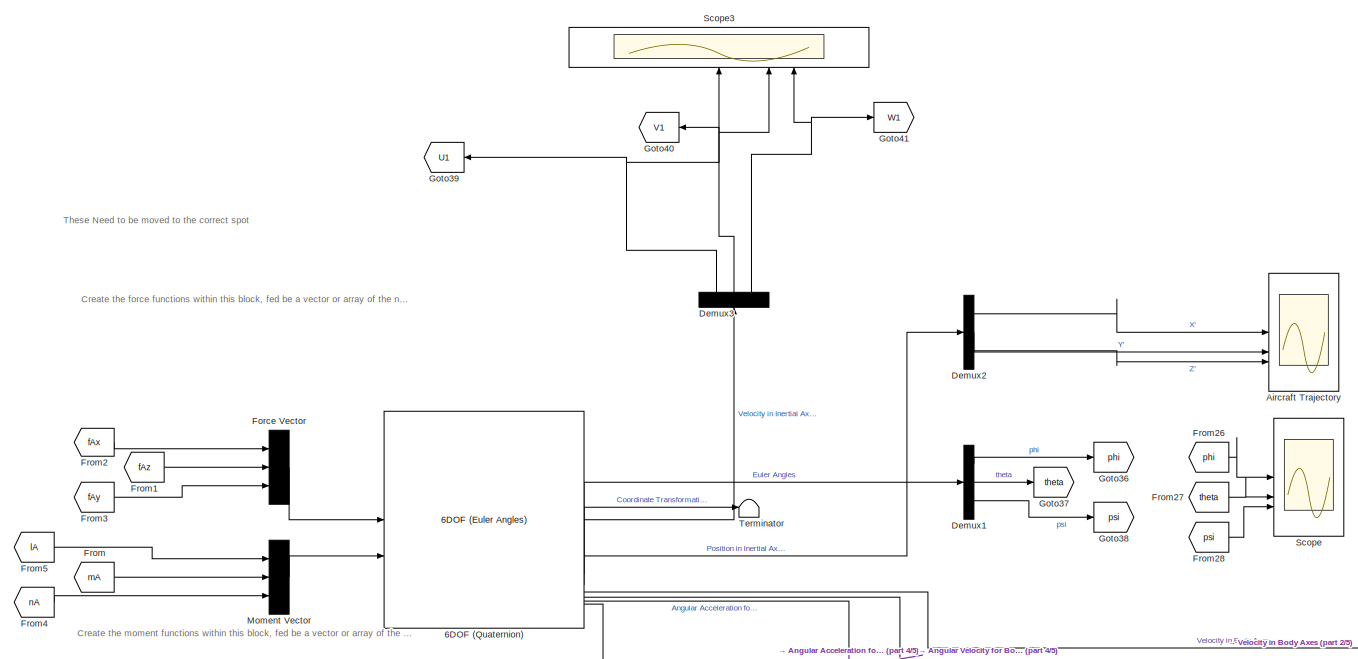
[diagram: root canvas - part 1/5, top center region]
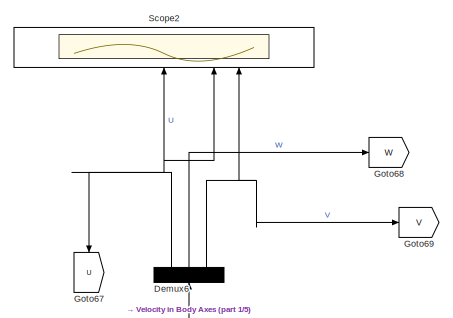
[diagram: root canvas - part 2/5, top right region]
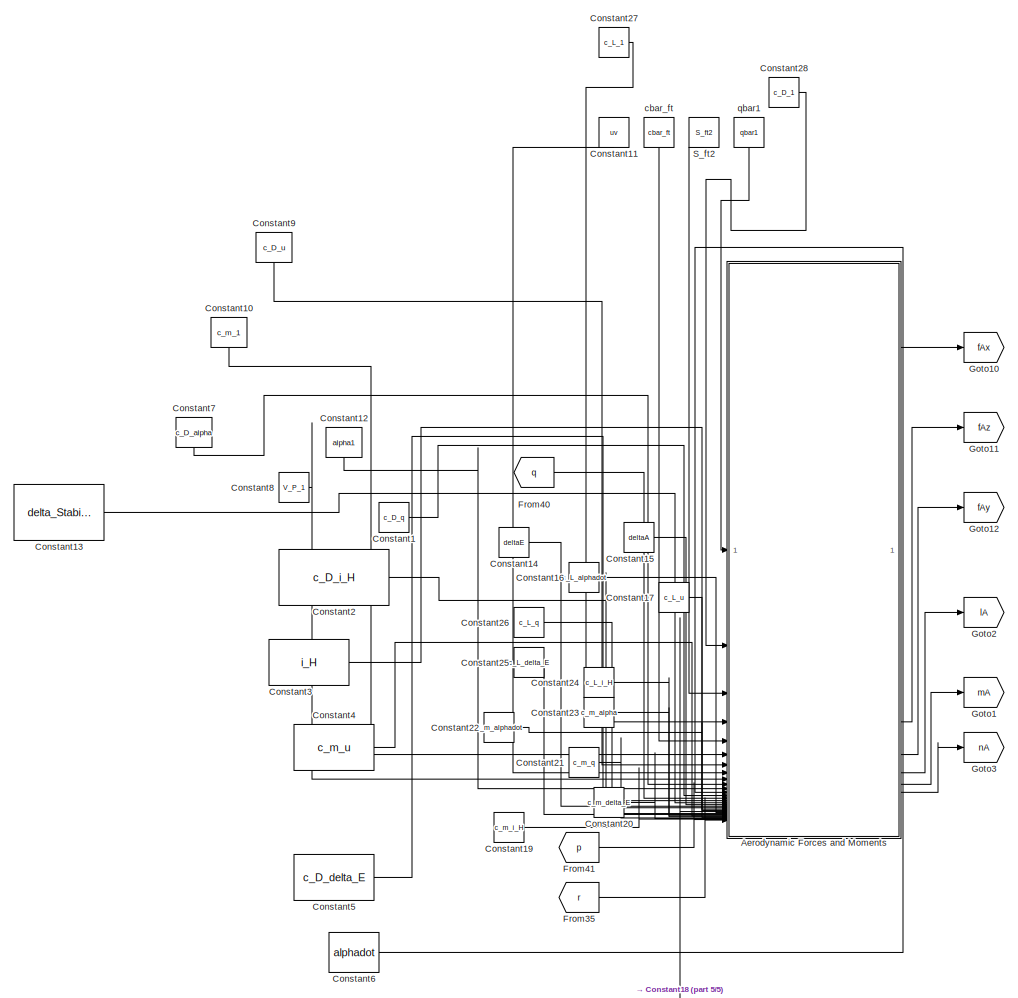
[diagram: root canvas - part 3/5, middle left region]
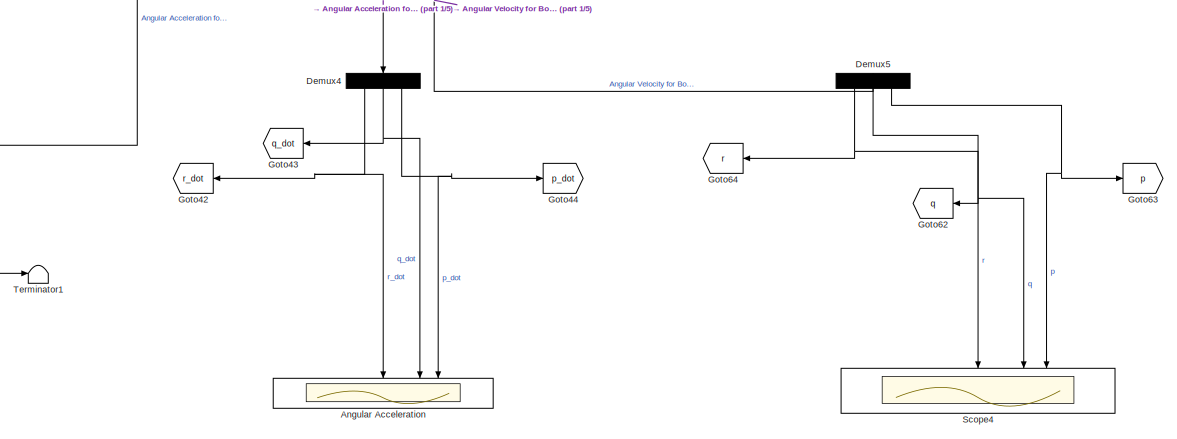
[diagram: root canvas - part 4/5, middle right region]
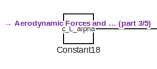
[diagram: root canvas - part 5/5, bottom left region]
MODEL slx_30656341fce1
KIND model
CONFIG AbsTol = auto
CONFIG EnableMultiTasking = off
CONFIG FixedStep = auto
CONFIG MaxStep = auto
CONFIG MinStep = auto
CONFIG RelTol = 1e-3
CONFIG SampleTimeConstraint = Unconstrained
CONFIG SolverName = VariableStepAuto
CONFIG StartTime = 0.0
CONFIG StopTime = 10.0
WORKSPACE source: mxarray member
WORKSPACE pqr = [0 0 0]
BLOCK [Reference] 6DOF (Quaternion)  REF=shared6dof/6DOF (Euler Angles)
  LibrarySourceBlock = aerolib6dof2/6DOF (Quaternion)
  SourceBlock = shared6dof/6DOF (Euler Angles)
  SourceType = 6DOF EoM (Body Axis)
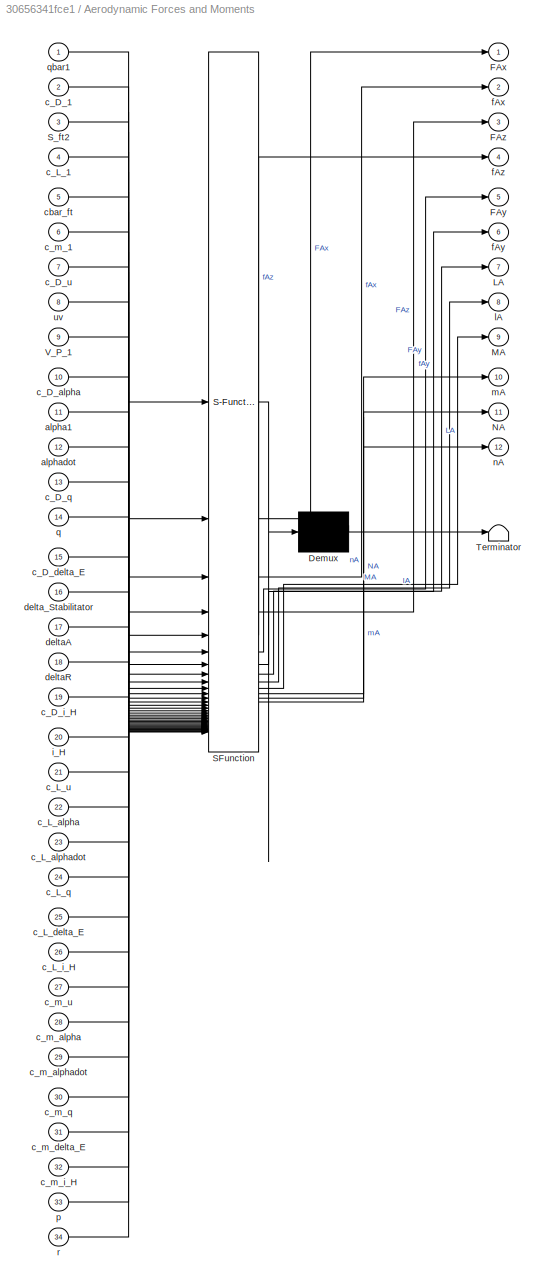
BLOCK [SubSystem] Aerodynamic Forces and Moments
  ErrorFcn = Stateflow.Translate.translate
  PermitHierarchicalResolution = ExplicitOnly
  SFBlockType = MATLAB Function
  TreatAsAtomicUnit = on
BLOCK [Demux] Aerodynamic Forces and Moments/ Demux 
  Outputs = 1
BLOCK [S-Function] Aerodynamic Forces and Moments/ SFunction 
  EnableBusSupport = on
  FunctionName = sf_sfun
  PortCounts = [34 13]
  SFcnIsStateOwnerBlock = off
  SFunctionDeploymentMode = off
  Tag = Stateflow S-Function 13
BLOCK [Terminator] Aerodynamic Forces and Moments/ Terminator 
BLOCK [Outport] Aerodynamic Forces and Moments/FAx
BLOCK [Outport] Aerodynamic Forces and Moments/FAy
  Port = 5
BLOCK [Outport] Aerodynamic Forces and Moments/FAz
  Port = 3
BLOCK [Outport] Aerodynamic Forces and Moments/LA
  Port = 7
BLOCK [Outport] Aerodynamic Forces and Moments/MA
  Port = 9
BLOCK [Outport] Aerodynamic Forces and Moments/NA
  Port = 11
BLOCK [Inport] Aerodynamic Forces and Moments/S_ft2
  Port = 3
BLOCK [Inport] Aerodynamic Forces and Moments/V_P_1
  Port = 9
BLOCK [Inport] Aerodynamic Forces and Moments/alpha1
  Port = 11
BLOCK [Inport] Aerodynamic Forces and Moments/alphadot
  Port = 12
BLOCK [Inport] Aerodynamic Forces and Moments/c_D_1
  Port = 2
BLOCK [Inport] Aerodynamic Forces and Moments/c_D_alpha
  Port = 10
BLOCK [Inport] Aerodynamic Forces and Moments/c_D_delta_E
  Port = 15
BLOCK [Inport] Aerodynamic Forces and Moments/c_D_i_H
  Port = 19
BLOCK [Inport] Aerodynamic Forces and Moments/c_D_q
  Port = 13
BLOCK [Inport] Aerodynamic Forces and Moments/c_D_u
  Port = 7
BLOCK [Inport] Aerodynamic Forces and Moments/c_L_1
  Port = 4
BLOCK [Inport] Aerodynamic Forces and Moments/c_L_alpha
  Port = 22
BLOCK [Inport] Aerodynamic Forces and Moments/c_L_alphadot
  Port = 23
BLOCK [Inport] Aerodynamic Forces and Moments/c_L_delta_E
  Port = 25
BLOCK [Inport] Aerodynamic Forces and Moments/c_L_i_H
  Port = 26
BLOCK [Inport] Aerodynamic Forces and Moments/c_L_q
  Port = 24
BLOCK [Inport] Aerodynamic Forces and Moments/c_L_u
  Port = 21
BLOCK [Inport] Aerodynamic Forces and Moments/c_m_1
  Port = 6
BLOCK [Inport] Aerodynamic Forces and Moments/c_m_alpha
  Port = 28
BLOCK [Inport] Aerodynamic Forces and Moments/c_m_alphadot
  Port = 29
BLOCK [Inport] Aerodynamic Forces and Moments/c_m_delta_E
  Port = 31
BLOCK [Inport] Aerodynamic Forces and Moments/c_m_i_H
  Port = 32
BLOCK [Inport] Aerodynamic Forces and Moments/c_m_q
  Port = 30
BLOCK [Inport] Aerodynamic Forces and Moments/c_m_u
  Port = 27
BLOCK [Inport] Aerodynamic Forces and Moments/cbar_ft
  Port = 5
BLOCK [Inport] Aerodynamic Forces and Moments/deltaA
  Port = 17
BLOCK [Inport] Aerodynamic Forces and Moments/deltaR
  Port = 18
BLOCK [Inport] Aerodynamic Forces and Moments/delta_Stabilitator
  Port = 16
BLOCK [Outport] Aerodynamic Forces and Moments/fAx
  Port = 2
BLOCK [Outport] Aerodynamic Forces and Moments/fAy
  Port = 6
BLOCK [Outport] Aerodynamic Forces and Moments/fAz
  Port = 4
BLOCK [Inport] Aerodynamic Forces and Moments/i_H
  Port = 20
BLOCK [Outport] Aerodynamic Forces and Moments/lA
  Port = 8
BLOCK [Outport] Aerodynamic Forces and Moments/mA
  Port = 10
BLOCK [Outport] Aerodynamic Forces and Moments/nA
  Port = 12
BLOCK [Inport] Aerodynamic Forces and Moments/p
  Port = 33
BLOCK [Inport] Aerodynamic Forces and Moments/q
  Port = 14
BLOCK [Inport] Aerodynamic Forces and Moments/qbar1
BLOCK [Inport] Aerodynamic Forces and Moments/r
  Port = 34
BLOCK [Inport] Aerodynamic Forces and Moments/uv
  Port = 8
BLOCK [Scope] Aircraft Trajectory
  Floating = off
  NumInputPorts = 3
  ScopeSpecificationString = Simulink.scopes.TimeScopeBlockCfg('CurrentConfiguration', extmgr.ConfigurationSet(extmgr.Configuration('Core','General UI',true),extmgr.Configuration('Core','Source UI',true),extmgr.Configuration('Sources','WiredSimulink',true,'DataLoggingVariableName','ScopeData1'),extmgr.Configuration('Visuals','Time Domain',true),extmgr.Configuration('Tools','Plot Navigation',true),extmgr.Configuration('Tools',...<+58ch>
BLOCK [Scope] Angular Acceleration
  Floating = off
  NumInputPorts = 3
  ScopeSpecificationString = Simulink.scopes.TimeScopeBlockCfg('CurrentConfiguration', extmgr.ConfigurationSet(extmgr.Configuration('Core','General UI',true),extmgr.Configuration('Core','Source UI',true),extmgr.Configuration('Sources','WiredSimulink',true,'DataLoggingVariableName','ScopeData2'),extmgr.Configuration('Visuals','Time Domain',true),extmgr.Configuration('Tools','Plot Navigation',true),extmgr.Configuration('Tools',...<+58ch>
BLOCK [Constant] Constant1
  Value = c_D_q
BLOCK [Constant] Constant10
  NameLocation = top
  Value = c_m_1
BLOCK [Constant] Constant11
  NameLocation = top
  Value = uv
BLOCK [Constant] Constant12
  NameLocation = top
  Value = alpha1
BLOCK [Constant] Constant13
  Value = delta_Stabilitator
BLOCK [Constant] Constant14
  Value = deltaE
BLOCK [Constant] Constant15
  Value = deltaA
BLOCK [Constant] Constant16
  Value = c_L_alphadot
BLOCK [Constant] Constant17
  Value = c_L_u
BLOCK [Constant] Constant18
  Value = c_L_alpha
BLOCK [Constant] Constant19
  Value = c_m_i_H
BLOCK [Constant] Constant2
  Value = c_D_i_H
BLOCK [Constant] Constant20
  Value = c_m_delta_E
BLOCK [Constant] Constant21
  Value = c_m_q
BLOCK [Constant] Constant22
  Value = c_m_alphadot
BLOCK [Constant] Constant23
  Value = c_m_alpha
BLOCK [Constant] Constant24
  Value = c_L_i_H
BLOCK [Constant] Constant25
  Value = c_L_delta_E
BLOCK [Constant] Constant26
  Value = c_L_q
BLOCK [Constant] Constant27
  Value = c_L_1
BLOCK [Constant] Constant28
  Value = c_D_1
BLOCK [Constant] Constant3
  Value = i_H
BLOCK [Constant] Constant4
  Value = c_m_u
BLOCK [Constant] Constant5
  Value = c_D_delta_E
BLOCK [Constant] Constant6
  Value = alphadot
BLOCK [Constant] Constant7
  NameLocation = top
  Value = c_D_alpha
BLOCK [Constant] Constant8
  Value = V_P_1
BLOCK [Constant] Constant9
  NameLocation = top
  Value = c_D_u
BLOCK [Demux] Demux1
  Outputs = 3
BLOCK [Demux] Demux2
  Outputs = 3
BLOCK [Demux] Demux3
  NameLocation = right
  Outputs = 3
BLOCK [Demux] Demux4
  NameLocation = left
  Outputs = 3
BLOCK [Demux] Demux5
  NameLocation = left
  Outputs = 3
BLOCK [Demux] Demux6
  NameLocation = right
  Outputs = 3
BLOCK [Mux] Force Vector
  DisplayOption = bar
  Inputs = 3
BLOCK [From] From
  GotoTag = mA
BLOCK [From] From1
  GotoTag = fAz
BLOCK [From] From2
  GotoTag = fAx
BLOCK [From] From26
  GotoTag = phi
BLOCK [From] From27
  GotoTag = theta
BLOCK [From] From28
  GotoTag = psi
BLOCK [From] From3
  GotoTag = fAy
BLOCK [From] From35
  GotoTag = r
BLOCK [From] From4
  GotoTag = nA
BLOCK [From] From40
  GotoTag = q
BLOCK [From] From41
  GotoTag = p
BLOCK [From] From5
  GotoTag = lA
BLOCK [Goto] Goto1
  GotoTag = mA
BLOCK [Goto] Goto10
  GotoTag = fAx
BLOCK [Goto] Goto11
  GotoTag = fAz
BLOCK [Goto] Goto12
  GotoTag = fAy
BLOCK [Goto] Goto2
  GotoTag = lA
BLOCK [Goto] Goto3
  GotoTag = nA
BLOCK [Goto] Goto36
  GotoTag = phi
BLOCK [Goto] Goto37
  GotoTag = theta
BLOCK [Goto] Goto38
  GotoTag = psi
BLOCK [Goto] Goto39
  GotoTag = U1
BLOCK [Goto] Goto40
  GotoTag = V1
BLOCK [Goto] Goto41
  GotoTag = W1
BLOCK [Goto] Goto42
  GotoTag = r_dot
BLOCK [Goto] Goto43
  GotoTag = q_dot
BLOCK [Goto] Goto44
  GotoTag = p_dot
BLOCK [Goto] Goto62
  GotoTag = q
BLOCK [Goto] Goto63
  GotoTag = p
BLOCK [Goto] Goto64
  GotoTag = r
BLOCK [Goto] Goto67
  GotoTag = U
  NameLocation = left
BLOCK [Goto] Goto68
  GotoTag = W
BLOCK [Goto] Goto69
  GotoTag = V
  NameLocation = top
BLOCK [Mux] Moment Vector
  DisplayOption = bar
  Inputs = 3
BLOCK [Constant] S_ft2
  NameLocation = top
  Value = S_ft2
BLOCK [Scope] Scope
  Floating = off
  NumInputPorts = 3
  ScopeSpecificationString = Simulink.scopes.TimeScopeBlockCfg('CurrentConfiguration', extmgr.ConfigurationSet(extmgr.Configuration('Core','General UI',true),extmgr.Configuration('Core','Source UI',true),extmgr.Configuration('Sources','WiredSimulink',true,'DataLoggingVariableName','ScopeData3'),extmgr.Configuration('Visuals','Time Domain',true),extmgr.Configuration('Tools','Plot Navigation',true),extmgr.Configuration('Tools',...<+40ch>
BLOCK [Scope] Scope2
  Floating = off
  NameLocation = right
  NumInputPorts = 3
  ScopeSpecificationString = Simulink.scopes.TimeScopeBlockCfg('CurrentConfiguration', extmgr.ConfigurationSet(extmgr.Configuration('Core','General UI',true),extmgr.Configuration('Core','Source UI',true),extmgr.Configuration('Sources','WiredSimulink',true,'DataLoggingVariableName','ScopeData4'),extmgr.Configuration('Visuals','Time Domain',true),extmgr.Configuration('Tools','Plot Navigation',true),extmgr.Configuration('Tools',...<+58ch>
BLOCK [Scope] Scope3
  Floating = off
  NameLocation = right
  NumInputPorts = 3
  ScopeSpecificationString = Simulink.scopes.TimeScopeBlockCfg('CurrentConfiguration', extmgr.ConfigurationSet(extmgr.Configuration('Core','General UI',true),extmgr.Configuration('Core','Source UI',true),extmgr.Configuration('Sources','WiredSimulink',true,'DataLoggingVariableName','ScopeData5'),extmgr.Configuration('Visuals','Time Domain',true),extmgr.Configuration('Tools','Plot Navigation',true),extmgr.Configuration('Tools',...<+58ch>
BLOCK [Scope] Scope4
  Floating = off
  NameLocation = left
  NumInputPorts = 3
  ScopeSpecificationString = Simulink.scopes.TimeScopeBlockCfg('CurrentConfiguration', extmgr.ConfigurationSet(extmgr.Configuration('Core','General UI',true),extmgr.Configuration('Core','Source UI',true),extmgr.Configuration('Sources','WiredSimulink',true),extmgr.Configuration('Visuals','Time Domain',true),extmgr.Configuration('Tools','Plot Navigation',true),extmgr.Configuration('Tools','Measurements',true)),'Version','2023b'...<+1ch>
BLOCK [Terminator] Terminator
BLOCK [Terminator] Terminator1
BLOCK [Constant] cbar_ft
  NameLocation = top
  Value = cbar_ft
BLOCK [Constant] qbar1
  NameLocation = right
  Value = qbar1
ANNOTATION (root): Create the force functions within this block, fed be a vector or array of the needed variables
ANNOTATION (root): Create the moment functions within this block, fed be a vector or array of the needed variables
ANNOTATION (root): These Need to be moved to the correct spot
LINE 6DOF (Quaternion):1 -> Demux3:1
LINE 6DOF (Quaternion):2 -> Demux2:1
LINE 6DOF (Quaternion):3 -> Demux1:1
LINE 6DOF (Quaternion):4 -> Terminator:1
LINE 6DOF (Quaternion):5 -> Demux6:1
LINE 6DOF (Quaternion):6 -> Demux5:1
LINE 6DOF (Quaternion):7 -> Demux4:1
LINE 6DOF (Quaternion):8 -> Terminator1:1
LINE Aerodynamic Forces and Moments:10 -> Goto1:1
LINE Aerodynamic Forces and Moments:12 -> Goto3:1
LINE Aerodynamic Forces and Moments:2 -> Goto10:1
LINE Aerodynamic Forces and Moments:4 -> Goto11:1
LINE Aerodynamic Forces and Moments:6 -> Goto12:1
LINE Aerodynamic Forces and Moments:8 -> Goto2:1
LINE Constant10:1 -> Aerodynamic Forces and Moments:6
LINE Constant11:1 -> Aerodynamic Forces and Moments:8
LINE Constant12:1 -> Aerodynamic Forces and Moments:11
LINE Constant13:1 -> Aerodynamic Forces and Moments:16
LINE Constant14:1 -> Aerodynamic Forces and Moments:18
LINE Constant15:1 -> Aerodynamic Forces and Moments:17
LINE Constant16:1 -> Aerodynamic Forces and Moments:23
LINE Constant17:1 -> Aerodynamic Forces and Moments:21
LINE Constant18:1 -> Aerodynamic Forces and Moments:22
LINE Constant19:1 -> Aerodynamic Forces and Moments:32
LINE Constant1:1 -> Aerodynamic Forces and Moments:13
LINE Constant20:1 -> Aerodynamic Forces and Moments:31
LINE Constant21:1 -> Aerodynamic Forces and Moments:30
LINE Constant22:1 -> Aerodynamic Forces and Moments:29
LINE Constant23:1 -> Aerodynamic Forces and Moments:28
LINE Constant24:1 -> Aerodynamic Forces and Moments:26
LINE Constant25:1 -> Aerodynamic Forces and Moments:25
LINE Constant26:1 -> Aerodynamic Forces and Moments:24
LINE Constant27:1 -> Aerodynamic Forces and Moments:4
LINE Constant28:1 -> Aerodynamic Forces and Moments:2
LINE Constant2:1 -> Aerodynamic Forces and Moments:19
LINE Constant3:1 -> Aerodynamic Forces and Moments:20
LINE Constant4:1 -> Aerodynamic Forces and Moments:27
LINE Constant5:1 -> Aerodynamic Forces and Moments:15
LINE Constant6:1 -> Aerodynamic Forces and Moments:12
LINE Constant7:1 -> Aerodynamic Forces and Moments:10
LINE Constant8:1 -> Aerodynamic Forces and Moments:9
LINE Constant9:1 -> Aerodynamic Forces and Moments:7
LINE Demux1:1 -> Goto36:1
LINE Demux1:2 -> Goto37:1
LINE Demux1:3 -> Goto38:1
LINE Demux2:1 -> Aircraft Trajectory:1
LINE Demux2:2 -> Aircraft Trajectory:2
LINE Demux2:3 -> Aircraft Trajectory:3
NET Demux3:1 -> Goto39:1, Scope3:1
NET Demux3:2 -> Goto40:1, Scope3:2
NET Demux3:3 -> Goto41:1, Scope3:3
NET Demux4:1 -> Angular Acceleration:1, Goto42:1
NET Demux4:2 -> Angular Acceleration:2, Goto43:1
NET Demux4:3 -> Angular Acceleration:3, Goto44:1
NET Demux5:1 -> Goto64:1, Scope4:1
NET Demux5:2 -> Goto62:1, Scope4:2
NET Demux5:3 -> Goto63:1, Scope4:3
NET Demux6:1 -> Goto67:1, Scope2:1
NET Demux6:2 -> Goto68:1, Scope2:2
NET Demux6:3 -> Goto69:1, Scope2:3
LINE Force Vector:1 -> 6DOF (Quaternion):1
LINE From1:1 -> Force Vector:2
LINE From26:1 -> Scope:1
LINE From27:1 -> Scope:2
LINE From28:1 -> Scope:3
LINE From2:1 -> Force Vector:1
LINE From35:1 -> Aerodynamic Forces and Moments:34
LINE From3:1 -> Force Vector:3
LINE From40:1 -> Aerodynamic Forces and Moments:14
LINE From41:1 -> Aerodynamic Forces and Moments:33
LINE From4:1 -> Moment Vector:3
LINE From5:1 -> Moment Vector:1
LINE From:1 -> Moment Vector:2
LINE Moment Vector:1 -> 6DOF (Quaternion):2
LINE S_ft2:1 -> Aerodynamic Forces and Moments:3
LINE cbar_ft:1 -> Aerodynamic Forces and Moments:5
LINE qbar1:1 -> Aerodynamic Forces and Moments:1
note: NET lines group one-source signal fan-out (src -> all destinations, sorted); 1:1 wires keep LINE
CHART Aerodynamic Forces and Moments states=1 transitions=1
  STATE_LABEL 'eML_blk_kernel()'
  STATE_LABEL 'SCRIPT:\nfunction [FAx, fAx, FAz, fAz, FAy, fAy, LA, lA, MA, mA, NA, nA]  = fcn(qbar1, c_D_1, S_ft2, c_L_1, cbar_ft, c_m_1, c_D_u, uv, V_P_1, c_D_alpha, alpha1, alphadot, c_D_q, q, c_D_delta_E, delta_Stabilitator, deltaA, deltaR, c_D_i_H, i_H, c_L_u, c_L_alpha, c_L_alphadot, c_L_q, c_L_delta_E, c_L_i_H, c_m_u, c_m_alpha, c_m_alphadot, c_m_q, c_m_delta_E, c_m_i_H, p, r)\n\nFAx = -qbar1*S_ft2*c_D_1;\nfA...<+1417ch>'
CHART  states=0 transitions=0
